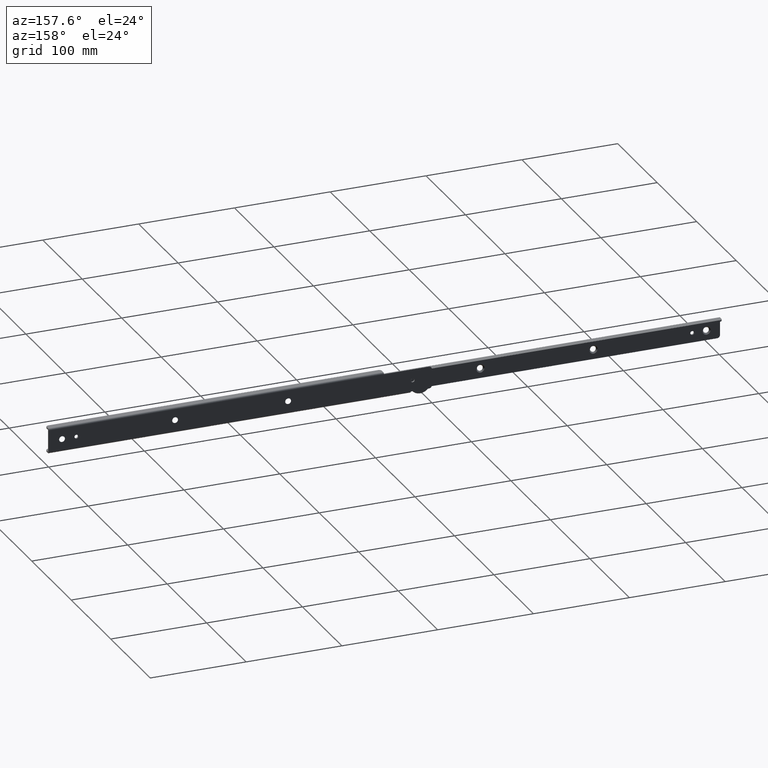
[diagram: clean part render]
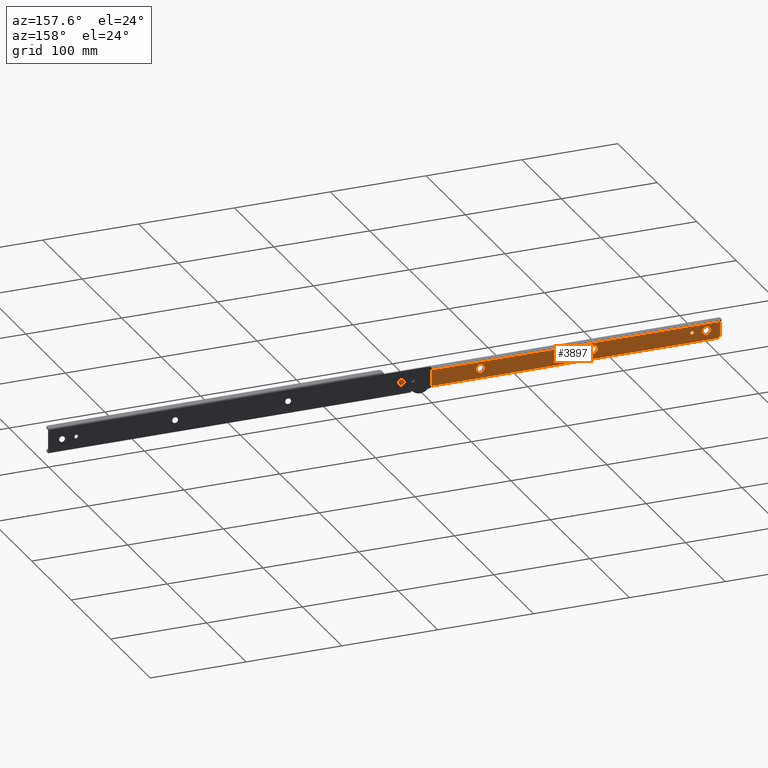
[diagram: same view with one face highlighted and labeled with its STEP entity id]
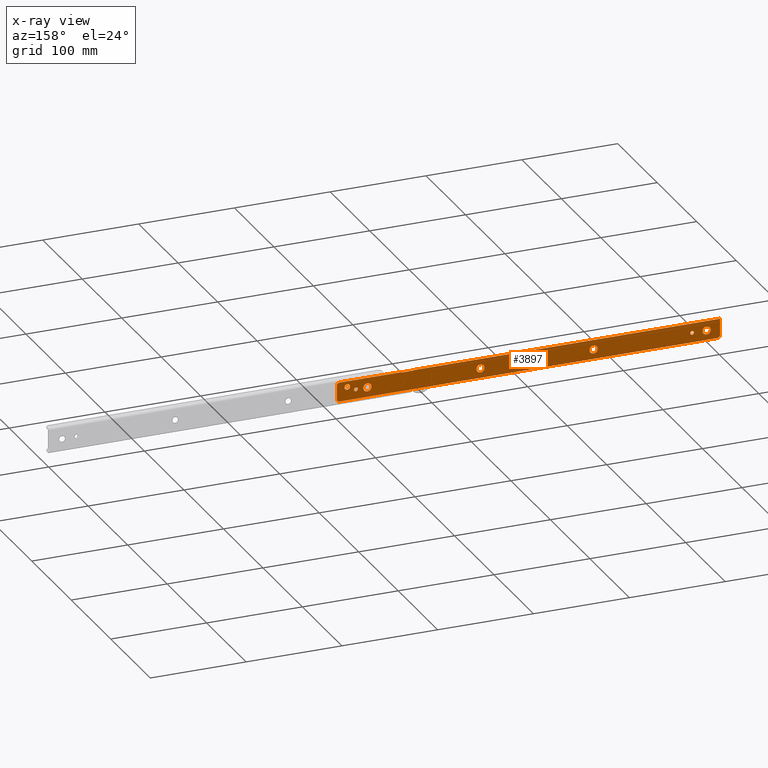
[diagram: x-ray of the same camera — body ghosted, the highlighted face saturated]
A machine part, auxiliary view. The second image highlights one B-rep face of the part: STEP entity #3897.
The next image is the same camera in x-ray: the body ghosted, the highlighted face saturated — about 0% of this face is hidden behind the body in this view.
In plain terms, the highlighted face is a freeform B-spline surface patch.
Its self-contained STEP definition (entity closure, byte-faithful):
#1384=CARTESIAN_POINT('',(86.940906133188662,-10.400000000000000,-7.831454349220865));
#1385=VERTEX_POINT('',#1384);
#1391=CARTESIAN_POINT('',(84.0,-10.400000000000000,-10.549999999999800));
#1392=VERTEX_POINT('',#1391);
#1393=CARTESIAN_POINT('',(84.0,-10.400000000000000,-10.549999999999800));
#1394=CARTESIAN_POINT('',(86.726951919095313,-10.400000000000000,-10.549999999999800));
#1395=CARTESIAN_POINT('',(86.940906133188662,-10.400000000000004,-7.831454349220865));
#1403=(BOUNDED_CURVE()B_SPLINE_CURVE(2,(#1393,#1394,#1395),.UNSPECIFIED.,.F.,.U.)B_SPLINE_CURVE_WITH_KNOTS((3,3),(0.0,0.236331298671445),.UNSPECIFIED.)CURVE()GEOMETRIC_REPRESENTATION_ITEM()RATIONAL_B_SPLINE_CURVE((1.0,0.723120660903028,0.969723352078686))REPRESENTATION_ITEM(''));
#1404=EDGE_CURVE('',#1392,#1385,#1403,.T.);
#1406=CARTESIAN_POINT('',(81.059093866811338,-10.400000000000000,-7.368545650778734));
#1407=VERTEX_POINT('',#1406);
#1408=CARTESIAN_POINT('',(81.059093866811338,-10.399999999999997,-7.368545650778734));
#1409=CARTESIAN_POINT('',(81.050000000000011,-10.400000000000002,-7.484094167425178));
#1410=CARTESIAN_POINT('',(81.050000000000011,-10.400000000000000,-7.599999999999800));
#1411=CARTESIAN_POINT('',(81.050000000000011,-10.400000000000000,-10.549999999999802));
#1412=CARTESIAN_POINT('',(84.0,-10.400000000000000,-10.549999999999800));
#1420=(BOUNDED_CURVE()B_SPLINE_CURVE(2,(#1408,#1409,#1410,#1411,#1412),.UNSPECIFIED.,.F.,.U.)B_SPLINE_CURVE_WITH_KNOTS((3,2,3),(0.736331298671445,0.750000000000000,1.0),.UNSPECIFIED.)CURVE()GEOMETRIC_REPRESENTATION_ITEM()RATIONAL_B_SPLINE_CURVE((0.969723352078686,0.983986120283519,1.0,0.707106781186548,1.0))REPRESENTATION_ITEM(''));
#1421=EDGE_CURVE('',#1407,#1392,#1420,.T.);
#1497=CARTESIAN_POINT('',(84.0,-10.400000000000000,-4.649999999999801));
#1498=VERTEX_POINT('',#1497);
#1499=CARTESIAN_POINT('',(84.0,-10.400000000000000,-4.649999999999801));
#1500=CARTESIAN_POINT('',(81.273048080904715,-10.400000000000000,-4.649999999999800));
#1501=CARTESIAN_POINT('',(81.059093866811338,-10.399999999999995,-7.368545650778734));
#1509=(BOUNDED_CURVE()B_SPLINE_CURVE(2,(#1499,#1500,#1501),.UNSPECIFIED.,.F.,.U.)B_SPLINE_CURVE_WITH_KNOTS((3,3),(0.500000000000000,0.736331298671444),.UNSPECIFIED.)CURVE()GEOMETRIC_REPRESENTATION_ITEM()RATIONAL_B_SPLINE_CURVE((1.0,0.723120660903030,0.969723352078684))REPRESENTATION_ITEM(''));
#1510=EDGE_CURVE('',#1498,#1407,#1509,.T.);
#1512=CARTESIAN_POINT('',(86.940906133188662,-10.399999999999995,-7.831454349220865));
#1513=CARTESIAN_POINT('',(86.950000000000017,-10.400000000000000,-7.715905832574421));
#1514=CARTESIAN_POINT('',(86.950000000000003,-10.400000000000000,-7.599999999999800));
#1515=CARTESIAN_POINT('',(86.950000000000003,-10.400000000000000,-4.649999999999801));
#1516=CARTESIAN_POINT('',(84.0,-10.400000000000000,-4.649999999999801));
#1524=(BOUNDED_CURVE()B_SPLINE_CURVE(2,(#1512,#1513,#1514,#1515,#1516),.UNSPECIFIED.,.F.,.U.)B_SPLINE_CURVE_WITH_KNOTS((3,2,3),(0.236331298671445,0.250000000000000,0.500000000000000),.UNSPECIFIED.)CURVE()GEOMETRIC_REPRESENTATION_ITEM()RATIONAL_B_SPLINE_CURVE((0.969723352078686,0.983986120283519,1.0,0.707106781186548,1.0))REPRESENTATION_ITEM(''));
#1525=EDGE_CURVE('',#1385,#1498,#1524,.T.);
#1566=CARTESIAN_POINT('',(58.713255463621522,-10.399999995444610,-11.262625858044521));
#1567=VERTEX_POINT('',#1566);
#1573=CARTESIAN_POINT('',(63.0,-10.400000000000000,-7.299999999999800));
#1574=VERTEX_POINT('',#1573);
#1575=CARTESIAN_POINT('',(63.0,-10.400000000000000,-7.299999999999800));
#1576=CARTESIAN_POINT('',(59.025120941742067,-10.399999999999999,-7.299999999999800));
#1577=CARTESIAN_POINT('',(58.713255463621529,-10.399999995444606,-11.262625858044515));
#1585=(BOUNDED_CURVE()B_SPLINE_CURVE(2,(#1575,#1576,#1577),.UNSPECIFIED.,.F.,.U.)B_SPLINE_CURVE_WITH_KNOTS((3,3),(0.0,0.236331298230590),.UNSPECIFIED.)CURVE()GEOMETRIC_REPRESENTATION_ITEM()RATIONAL_B_SPLINE_CURVE((1.0,0.723120661419522,0.969723351158655))REPRESENTATION_ITEM(''));
#1586=EDGE_CURVE('',#1574,#1567,#1585,.T.);
#1588=CARTESIAN_POINT('',(67.286744536378478,-10.399999995444601,-11.937374141955081));
#1589=VERTEX_POINT('',#1588);
#1590=CARTESIAN_POINT('',(67.286744536378478,-10.399999995444599,-11.937374141955079));
#1591=CARTESIAN_POINT('',(67.300000000000011,-10.400000000000000,-11.768947490307314));
#1592=CARTESIAN_POINT('',(67.299999999999997,-10.400000000000000,-11.599999999999801));
#1593=CARTESIAN_POINT('',(67.299999999999997,-10.400000000000000,-7.299999999999800));
#1594=CARTESIAN_POINT('',(63.0,-10.400000000000000,-7.299999999999800));
#1602=(BOUNDED_CURVE()B_SPLINE_CURVE(2,(#1590,#1591,#1592,#1593,#1594),.UNSPECIFIED.,.F.,.U.)B_SPLINE_CURVE_WITH_KNOTS((3,2,3),(0.736331298230590,0.750000000000000,1.0),.UNSPECIFIED.)CURVE()GEOMETRIC_REPRESENTATION_ITEM()RATIONAL_B_SPLINE_CURVE((0.969723351158655,0.983986119767025,1.0,0.707106781186547,1.0))REPRESENTATION_ITEM(''));
#1603=EDGE_CURVE('',#1589,#1574,#1602,.T.);
#1679=CARTESIAN_POINT('',(63.0,-10.400000000000000,-15.899999999999800));
#1680=VERTEX_POINT('',#1679);
#1681=CARTESIAN_POINT('',(63.0,-10.400000000000000,-15.899999999999800));
#1682=CARTESIAN_POINT('',(66.974879058257940,-10.400000000000002,-15.899999999999803));
#1683=CARTESIAN_POINT('',(67.286744536378478,-10.399999995444603,-11.937374141955081));
#1691=(BOUNDED_CURVE()B_SPLINE_CURVE(2,(#1681,#1682,#1683),.UNSPECIFIED.,.F.,.U.)B_SPLINE_CURVE_WITH_KNOTS((3,3),(0.500000000000000,0.736331298230590),.UNSPECIFIED.)CURVE()GEOMETRIC_REPRESENTATION_ITEM()RATIONAL_B_SPLINE_CURVE((1.0,0.723120661419522,0.969723351158655))REPRESENTATION_ITEM(''));
#1692=EDGE_CURVE('',#1680,#1589,#1691,.T.);
#1694=CARTESIAN_POINT('',(58.713255463621522,-10.399999995444610,-11.262625858044519));
#1695=CARTESIAN_POINT('',(58.700000000000017,-10.400000000000000,-11.431052509692291));
#1696=CARTESIAN_POINT('',(58.700000000000003,-10.400000000000000,-11.599999999999801));
#1697=CARTESIAN_POINT('',(58.700000000000003,-10.400000000000000,-15.899999999999794));
#1698=CARTESIAN_POINT('',(63.0,-10.400000000000000,-15.899999999999800));
#1706=(BOUNDED_CURVE()B_SPLINE_CURVE(2,(#1694,#1695,#1696,#1697,#1698),.UNSPECIFIED.,.F.,.U.)B_SPLINE_CURVE_WITH_KNOTS((3,2,3),(0.236331298230590,0.250000000000000,0.500000000000000),.UNSPECIFIED.)CURVE()GEOMETRIC_REPRESENTATION_ITEM()RATIONAL_B_SPLINE_CURVE((0.969723351158655,0.983986119767025,1.0,0.707106781186547,1.0))REPRESENTATION_ITEM(''));
#1707=EDGE_CURVE('',#1567,#1680,#1706,.T.);
#1748=CARTESIAN_POINT('',(-59.286744536378478,-10.399999995444610,-11.262625858044521));
#1749=VERTEX_POINT('',#1748);
#1755=CARTESIAN_POINT('',(-55.0,-10.400000000000000,-7.299999999999800));
#1756=VERTEX_POINT('',#1755);
#1757=CARTESIAN_POINT('',(-55.0,-10.400000000000000,-7.299999999999800));
#1758=CARTESIAN_POINT('',(-58.974879058257947,-10.399999999999999,-7.299999999999800));
#1759=CARTESIAN_POINT('',(-59.286744536378478,-10.399999995444606,-11.262625858044515));
#1767=(BOUNDED_CURVE()B_SPLINE_CURVE(2,(#1757,#1758,#1759),.UNSPECIFIED.,.F.,.U.)B_SPLINE_CURVE_WITH_KNOTS((3,3),(0.0,0.236331298230590),.UNSPECIFIED.)CURVE()GEOMETRIC_REPRESENTATION_ITEM()RATIONAL_B_SPLINE_CURVE((1.0,0.723120661419522,0.969723351158655))REPRESENTATION_ITEM(''));
#1768=EDGE_CURVE('',#1756,#1749,#1767,.T.);
#1770=CARTESIAN_POINT('',(-50.713255463621522,-10.399999995444601,-11.937374141955081));
#1771=VERTEX_POINT('',#1770);
#1772=CARTESIAN_POINT('',(-50.713255463621522,-10.399999995444610,-11.937374141955079));
#1773=CARTESIAN_POINT('',(-50.700000000000003,-10.400000000000000,-11.768947490307314));
#1774=CARTESIAN_POINT('',(-50.700000000000003,-10.400000000000000,-11.599999999999801));
#1775=CARTESIAN_POINT('',(-50.700000000000010,-10.400000000000000,-7.299999999999800));
#1776=CARTESIAN_POINT('',(-55.0,-10.400000000000000,-7.299999999999800));
#1784=(BOUNDED_CURVE()B_SPLINE_CURVE(2,(#1772,#1773,#1774,#1775,#1776),.UNSPECIFIED.,.F.,.U.)B_SPLINE_CURVE_WITH_KNOTS((3,2,3),(0.736331298230590,0.750000000000000,1.0),.UNSPECIFIED.)CURVE()GEOMETRIC_REPRESENTATION_ITEM()RATIONAL_B_SPLINE_CURVE((0.969723351158655,0.983986119767025,1.0,0.707106781186547,1.0))REPRESENTATION_ITEM(''));
#1785=EDGE_CURVE('',#1771,#1756,#1784,.T.);
#1861=CARTESIAN_POINT('',(-55.0,-10.400000000000000,-15.899999999999800));
#1862=VERTEX_POINT('',#1861);
#1863=CARTESIAN_POINT('',(-55.0,-10.400000000000000,-15.899999999999800));
#1864=CARTESIAN_POINT('',(-51.025120941742060,-10.400000000000002,-15.899999999999803));
#1865=CARTESIAN_POINT('',(-50.713255463621522,-10.399999995444603,-11.937374141955081));
#1873=(BOUNDED_CURVE()B_SPLINE_CURVE(2,(#1863,#1864,#1865),.UNSPECIFIED.,.F.,.U.)B_SPLINE_CURVE_WITH_KNOTS((3,3),(0.500000000000000,0.736331298230590),.UNSPECIFIED.)CURVE()GEOMETRIC_REPRESENTATION_ITEM()RATIONAL_B_SPLINE_CURVE((1.0,0.723120661419522,0.969723351158655))REPRESENTATION_ITEM(''));
#1874=EDGE_CURVE('',#1862,#1771,#1873,.T.);
#1876=CARTESIAN_POINT('',(-59.286744536378478,-10.399999995444610,-11.262625858044519));
#1877=CARTESIAN_POINT('',(-59.299999999999997,-10.400000000000000,-11.431052509692291));
#1878=CARTESIAN_POINT('',(-59.299999999999997,-10.400000000000000,-11.599999999999801));
#1879=CARTESIAN_POINT('',(-59.299999999999997,-10.400000000000000,-15.899999999999794));
#1880=CARTESIAN_POINT('',(-55.0,-10.400000000000000,-15.899999999999800));
#1888=(BOUNDED_CURVE()B_SPLINE_CURVE(2,(#1876,#1877,#1878,#1879,#1880),.UNSPECIFIED.,.F.,.U.)B_SPLINE_CURVE_WITH_KNOTS((3,2,3),(0.236331298230590,0.250000000000000,0.500000000000000),.UNSPECIFIED.)CURVE()GEOMETRIC_REPRESENTATION_ITEM()RATIONAL_B_SPLINE_CURVE((0.969723351158655,0.983986119767025,1.0,0.707106781186547,1.0))REPRESENTATION_ITEM(''));
#1889=EDGE_CURVE('',#1749,#1862,#1888,.T.);
#1930=CARTESIAN_POINT('',(-177.286744536378510,-10.399999995444610,-11.262625858044521));
#1931=VERTEX_POINT('',#1930);
#1937=CARTESIAN_POINT('',(-173.0,-10.400000000000000,-7.299999999999800));
#1938=VERTEX_POINT('',#1937);
#1939=CARTESIAN_POINT('',(-173.0,-10.400000000000000,-7.299999999999800));
#1940=CARTESIAN_POINT('',(-176.974879058258010,-10.399999999999999,-7.299999999999800));
#1941=CARTESIAN_POINT('',(-177.286744536378480,-10.399999995444606,-11.262625858044515));
#1949=(BOUNDED_CURVE()B_SPLINE_CURVE(2,(#1939,#1940,#1941),.UNSPECIFIED.,.F.,.U.)B_SPLINE_CURVE_WITH_KNOTS((3,3),(0.0,0.236331298230590),.UNSPECIFIED.)CURVE()GEOMETRIC_REPRESENTATION_ITEM()RATIONAL_B_SPLINE_CURVE((1.0,0.723120661419522,0.969723351158655))REPRESENTATION_ITEM(''));
#1950=EDGE_CURVE('',#1938,#1931,#1949,.T.);
#1952=CARTESIAN_POINT('',(-168.713255463621490,-10.399999995444601,-11.937374141955081));
#1953=VERTEX_POINT('',#1952);
#1954=CARTESIAN_POINT('',(-168.713255463621550,-10.399999995444599,-11.937374141955079));
#1955=CARTESIAN_POINT('',(-168.699999999999960,-10.400000000000000,-11.768947490307314));
#1956=CARTESIAN_POINT('',(-168.699999999999990,-10.400000000000000,-11.599999999999801));
#1957=CARTESIAN_POINT('',(-168.699999999999930,-10.400000000000000,-7.299999999999800));
#1958=CARTESIAN_POINT('',(-173.0,-10.400000000000000,-7.299999999999800));
#1966=(BOUNDED_CURVE()B_SPLINE_CURVE(2,(#1954,#1955,#1956,#1957,#1958),.UNSPECIFIED.,.F.,.U.)B_SPLINE_CURVE_WITH_KNOTS((3,2,3),(0.736331298230590,0.750000000000000,1.0),.UNSPECIFIED.)CURVE()GEOMETRIC_REPRESENTATION_ITEM()RATIONAL_B_SPLINE_CURVE((0.969723351158655,0.983986119767025,1.0,0.707106781186547,1.0))REPRESENTATION_ITEM(''));
#1967=EDGE_CURVE('',#1953,#1938,#1966,.T.);
#2043=CARTESIAN_POINT('',(-173.0,-10.400000000000000,-15.899999999999800));
#2044=VERTEX_POINT('',#2043);
#2045=CARTESIAN_POINT('',(-173.0,-10.400000000000000,-15.899999999999800));
#2046=CARTESIAN_POINT('',(-169.025120941742020,-10.400000000000002,-15.899999999999803));
#2047=CARTESIAN_POINT('',(-168.713255463621520,-10.399999995444603,-11.937374141955081));
#2055=(BOUNDED_CURVE()B_SPLINE_CURVE(2,(#2045,#2046,#2047),.UNSPECIFIED.,.F.,.U.)B_SPLINE_CURVE_WITH_KNOTS((3,3),(0.500000000000000,0.736331298230590),.UNSPECIFIED.)CURVE()GEOMETRIC_REPRESENTATION_ITEM()RATIONAL_B_SPLINE_CURVE((1.0,0.723120661419522,0.969723351158655))REPRESENTATION_ITEM(''));
#2056=EDGE_CURVE('',#2044,#1953,#2055,.T.);
#2058=CARTESIAN_POINT('',(-177.286744536378540,-10.399999995444610,-11.262625858044519));
#2059=CARTESIAN_POINT('',(-177.299999999999950,-10.400000000000000,-11.431052509692281));
#2060=CARTESIAN_POINT('',(-177.300000000000010,-10.400000000000000,-11.599999999999801));
#2061=CARTESIAN_POINT('',(-177.300000000000040,-10.400000000000000,-15.899999999999794));
#2062=CARTESIAN_POINT('',(-173.0,-10.400000000000000,-15.899999999999800));
#2070=(BOUNDED_CURVE()B_SPLINE_CURVE(2,(#2058,#2059,#2060,#2061,#2062),.UNSPECIFIED.,.F.,.U.)B_SPLINE_CURVE_WITH_KNOTS((3,2,3),(0.236331298230590,0.250000000000000,0.500000000000000),.UNSPECIFIED.)CURVE()GEOMETRIC_REPRESENTATION_ITEM()RATIONAL_B_SPLINE_CURVE((0.969723351158655,0.983986119767025,1.0,0.707106781186547,1.0))REPRESENTATION_ITEM(''));
#2071=EDGE_CURVE('',#1931,#2044,#2070,.T.);
#2112=CARTESIAN_POINT('',(-295.286744536378480,-10.399999995444590,-11.262625858044521));
#2113=VERTEX_POINT('',#2112);
#2119=CARTESIAN_POINT('',(-291.0,-10.400000000000000,-7.299999999999800));
#2120=VERTEX_POINT('',#2119);
#2121=CARTESIAN_POINT('',(-291.0,-10.400000000000000,-7.299999999999800));
#2122=CARTESIAN_POINT('',(-294.974879058257950,-10.400000000000002,-7.299999999999801));
#2123=CARTESIAN_POINT('',(-295.286744536378540,-10.399999995444594,-11.262625858044514));
#2131=(BOUNDED_CURVE()B_SPLINE_CURVE(2,(#2121,#2122,#2123),.UNSPECIFIED.,.F.,.U.)B_SPLINE_CURVE_WITH_KNOTS((3,3),(0.0,0.236331298230589),.UNSPECIFIED.)CURVE()GEOMETRIC_REPRESENTATION_ITEM()RATIONAL_B_SPLINE_CURVE((1.0,0.723120661419523,0.969723351158654))REPRESENTATION_ITEM(''));
#2132=EDGE_CURVE('',#2120,#2113,#2131,.T.);
#2134=CARTESIAN_POINT('',(-286.713255463621520,-10.399999995444590,-11.937374141955081));
#2135=VERTEX_POINT('',#2134);
#2136=CARTESIAN_POINT('',(-286.713255463621520,-10.399999995444594,-11.937374141955086));
#2137=CARTESIAN_POINT('',(-286.699999999999870,-10.400000000000002,-11.768947490307315));
#2138=CARTESIAN_POINT('',(-286.699999999999870,-10.400000000000000,-11.599999999999801));
#2139=CARTESIAN_POINT('',(-286.699999999999930,-10.400000000000000,-7.299999999999800));
#2140=CARTESIAN_POINT('',(-291.0,-10.400000000000000,-7.299999999999800));
#2148=(BOUNDED_CURVE()B_SPLINE_CURVE(2,(#2136,#2137,#2138,#2139,#2140),.UNSPECIFIED.,.F.,.U.)B_SPLINE_CURVE_WITH_KNOTS((3,2,3),(0.736331298230589,0.750000000000000,1.0),.UNSPECIFIED.)CURVE()GEOMETRIC_REPRESENTATION_ITEM()RATIONAL_B_SPLINE_CURVE((0.969723351158654,0.983986119767025,1.0,0.707106781186547,1.0))REPRESENTATION_ITEM(''));
#2149=EDGE_CURVE('',#2135,#2120,#2148,.T.);
#2225=CARTESIAN_POINT('',(-291.0,-10.400000000000000,-15.899999999999800));
#2226=VERTEX_POINT('',#2225);
#2227=CARTESIAN_POINT('',(-291.0,-10.400000000000000,-15.899999999999800));
#2228=CARTESIAN_POINT('',(-287.025120941741990,-10.400000000000002,-15.899999999999803));
#2229=CARTESIAN_POINT('',(-286.713255463621460,-10.399999995444592,-11.937374141955081));
#2237=(BOUNDED_CURVE()B_SPLINE_CURVE(2,(#2227,#2228,#2229),.UNSPECIFIED.,.F.,.U.)B_SPLINE_CURVE_WITH_KNOTS((3,3),(0.500000000000000,0.736331298230590),.UNSPECIFIED.)CURVE()GEOMETRIC_REPRESENTATION_ITEM()RATIONAL_B_SPLINE_CURVE((1.0,0.723120661419522,0.969723351158655))REPRESENTATION_ITEM(''));
#2238=EDGE_CURVE('',#2226,#2135,#2237,.T.);
#2240=CARTESIAN_POINT('',(-295.286744536378420,-10.399999995444592,-11.262625858044512));
#2241=CARTESIAN_POINT('',(-295.299999999999950,-10.400000000000000,-11.431052509692282));
#2242=CARTESIAN_POINT('',(-295.300000000000010,-10.400000000000000,-11.599999999999801));
#2243=CARTESIAN_POINT('',(-295.300000000000010,-10.400000000000000,-15.899999999999794));
#2244=CARTESIAN_POINT('',(-291.0,-10.400000000000000,-15.899999999999800));
#2252=(BOUNDED_CURVE()B_SPLINE_CURVE(2,(#2240,#2241,#2242,#2243,#2244),.UNSPECIFIED.,.F.,.U.)B_SPLINE_CURVE_WITH_KNOTS((3,2,3),(0.236331298230589,0.250000000000000,0.500000000000000),.UNSPECIFIED.)CURVE()GEOMETRIC_REPRESENTATION_ITEM()RATIONAL_B_SPLINE_CURVE((0.969723351158654,0.983986119767025,1.0,0.707106781186547,1.0))REPRESENTATION_ITEM(''));
#2253=EDGE_CURVE('',#2113,#2226,#2252,.T.);
#2294=CARTESIAN_POINT('',(-277.993834666779210,-10.400000000000000,-11.443081799814300));
#2295=VERTEX_POINT('',#2294);
#2301=CARTESIAN_POINT('',(-276.0,-10.400000000000000,-9.599999999999799));
#2302=VERTEX_POINT('',#2301);
#2303=CARTESIAN_POINT('',(-276.0,-10.400000000000000,-9.599999999999799));
#2304=CARTESIAN_POINT('',(-277.848780967077000,-10.400000000000000,-9.599999999999799));
#2305=CARTESIAN_POINT('',(-277.993834666779210,-10.400000000000000,-11.443081799814300));
#2313=(BOUNDED_CURVE()B_SPLINE_CURVE(2,(#2303,#2304,#2305),.UNSPECIFIED.,.F.,.U.)B_SPLINE_CURVE_WITH_KNOTS((3,3),(0.0,0.236331299131636),.UNSPECIFIED.)CURVE()GEOMETRIC_REPRESENTATION_ITEM()RATIONAL_B_SPLINE_CURVE((1.0,0.723120660363881,0.969723353039070))REPRESENTATION_ITEM(''));
#2314=EDGE_CURVE('',#2302,#2295,#2313,.T.);
#2316=CARTESIAN_POINT('',(-274.006165333220790,-10.400000000000000,-11.756918200185300));
#2317=VERTEX_POINT('',#2316);
#2318=CARTESIAN_POINT('',(-274.006165333220790,-10.400000000000002,-11.756918200185302));
#2319=CARTESIAN_POINT('',(-274.000000000000060,-10.399999999999997,-11.678580222785461));
#2320=CARTESIAN_POINT('',(-274.0,-10.400000000000000,-11.599999999999801));
#2321=CARTESIAN_POINT('',(-273.999999999999940,-10.400000000000000,-9.599999999999799));
#2322=CARTESIAN_POINT('',(-276.0,-10.400000000000000,-9.599999999999799));
#2330=(BOUNDED_CURVE()B_SPLINE_CURVE(2,(#2318,#2319,#2320,#2321,#2322),.UNSPECIFIED.,.F.,.U.)B_SPLINE_CURVE_WITH_KNOTS((3,2,3),(0.736331299131636,0.750000000000000,1.0),.UNSPECIFIED.)CURVE()GEOMETRIC_REPRESENTATION_ITEM()RATIONAL_B_SPLINE_CURVE((0.969723353039070,0.983986120822667,1.0,0.707106781186548,1.0))REPRESENTATION_ITEM(''));
#2331=EDGE_CURVE('',#2317,#2302,#2330,.T.);
#2407=CARTESIAN_POINT('',(-276.0,-10.400000000000000,-13.599999999999801));
#2408=VERTEX_POINT('',#2407);
#2409=CARTESIAN_POINT('',(-276.0,-10.400000000000000,-13.599999999999801));
#2410=CARTESIAN_POINT('',(-274.151219032923110,-10.400000000000000,-13.599999999999799));
#2411=CARTESIAN_POINT('',(-274.006165333220850,-10.399999999999999,-11.756918200185302));
#2419=(BOUNDED_CURVE()B_SPLINE_CURVE(2,(#2409,#2410,#2411),.UNSPECIFIED.,.F.,.U.)B_SPLINE_CURVE_WITH_KNOTS((3,3),(0.500000000000000,0.736331299131636),.UNSPECIFIED.)CURVE()GEOMETRIC_REPRESENTATION_ITEM()RATIONAL_B_SPLINE_CURVE((1.0,0.723120660363881,0.969723353039069))REPRESENTATION_ITEM(''));
#2420=EDGE_CURVE('',#2408,#2317,#2419,.T.);
#2422=CARTESIAN_POINT('',(-277.993834666779260,-10.400000000000004,-11.443081799814303));
#2423=CARTESIAN_POINT('',(-278.0,-10.399999999999997,-11.521419777214136));
#2424=CARTESIAN_POINT('',(-278.0,-10.400000000000000,-11.599999999999801));
#2425=CARTESIAN_POINT('',(-278.0,-10.400000000000000,-13.599999999999799));
#2426=CARTESIAN_POINT('',(-276.0,-10.400000000000000,-13.599999999999801));
#2434=(BOUNDED_CURVE()B_SPLINE_CURVE(2,(#2422,#2423,#2424,#2425,#2426),.UNSPECIFIED.,.F.,.U.)B_SPLINE_CURVE_WITH_KNOTS((3,2,3),(0.236331299131636,0.250000000000000,0.500000000000000),.UNSPECIFIED.)CURVE()GEOMETRIC_REPRESENTATION_ITEM()RATIONAL_B_SPLINE_CURVE((0.969723353039070,0.983986120822667,1.0,0.707106781186548,1.0))REPRESENTATION_ITEM(''));
#2435=EDGE_CURVE('',#2295,#2408,#2434,.T.);
#2476=CARTESIAN_POINT('',(73.006165333220792,-10.400000000000000,-11.443081799814300));
#2477=VERTEX_POINT('',#2476);
#2483=CARTESIAN_POINT('',(75.0,-10.400000000000000,-9.599999999999799));
#2484=VERTEX_POINT('',#2483);
#2485=CARTESIAN_POINT('',(75.0,-10.400000000000000,-9.599999999999799));
#2486=CARTESIAN_POINT('',(73.151219032923038,-10.399999999999999,-9.599999999999799));
#2487=CARTESIAN_POINT('',(73.006165333220792,-10.400000000000004,-11.443081799814303));
#2495=(BOUNDED_CURVE()B_SPLINE_CURVE(2,(#2485,#2486,#2487),.UNSPECIFIED.,.F.,.U.)B_SPLINE_CURVE_WITH_KNOTS((3,3),(0.0,0.236331299131636),.UNSPECIFIED.)CURVE()GEOMETRIC_REPRESENTATION_ITEM()RATIONAL_B_SPLINE_CURVE((1.0,0.723120660363881,0.969723353039071))REPRESENTATION_ITEM(''));
#2496=EDGE_CURVE('',#2484,#2477,#2495,.T.);
#2498=CARTESIAN_POINT('',(76.993834666779208,-10.400000000000000,-11.756918200185300));
#2499=VERTEX_POINT('',#2498);
#2500=CARTESIAN_POINT('',(76.993834666779208,-10.400000000000006,-11.756918200185297));
#2501=CARTESIAN_POINT('',(77.0,-10.400000000000006,-11.678580222785460));
#2502=CARTESIAN_POINT('',(77.0,-10.400000000000000,-11.599999999999801));
#2503=CARTESIAN_POINT('',(77.000000000000014,-10.400000000000000,-9.599999999999799));
#2504=CARTESIAN_POINT('',(75.0,-10.400000000000000,-9.599999999999799));
#2512=(BOUNDED_CURVE()B_SPLINE_CURVE(2,(#2500,#2501,#2502,#2503,#2504),.UNSPECIFIED.,.F.,.U.)B_SPLINE_CURVE_WITH_KNOTS((3,2,3),(0.736331299131636,0.750000000000000,1.0),.UNSPECIFIED.)CURVE()GEOMETRIC_REPRESENTATION_ITEM()RATIONAL_B_SPLINE_CURVE((0.969723353039071,0.983986120822667,1.0,0.707106781186548,1.0))REPRESENTATION_ITEM(''));
#2513=EDGE_CURVE('',#2499,#2484,#2512,.T.);
#2589=CARTESIAN_POINT('',(75.0,-10.400000000000000,-13.599999999999801));
#2590=VERTEX_POINT('',#2589);
#2591=CARTESIAN_POINT('',(75.0,-10.400000000000000,-13.599999999999801));
#2592=CARTESIAN_POINT('',(76.848780967076934,-10.400000000000000,-13.599999999999799));
#2593=CARTESIAN_POINT('',(76.993834666779208,-10.399999999999999,-11.756918200185302));
#2601=(BOUNDED_CURVE()B_SPLINE_CURVE(2,(#2591,#2592,#2593),.UNSPECIFIED.,.F.,.U.)B_SPLINE_CURVE_WITH_KNOTS((3,3),(0.500000000000000,0.736331299131636),.UNSPECIFIED.)CURVE()GEOMETRIC_REPRESENTATION_ITEM()RATIONAL_B_SPLINE_CURVE((1.0,0.723120660363881,0.969723353039069))REPRESENTATION_ITEM(''));
#2602=EDGE_CURVE('',#2590,#2499,#2601,.T.);
#2604=CARTESIAN_POINT('',(73.006165333220792,-10.400000000000002,-11.443081799814301));
#2605=CARTESIAN_POINT('',(73.0,-10.400000000000002,-11.521419777214140));
#2606=CARTESIAN_POINT('',(73.0,-10.400000000000000,-11.599999999999801));
#2607=CARTESIAN_POINT('',(72.999999999999986,-10.400000000000000,-13.599999999999799));
#2608=CARTESIAN_POINT('',(75.0,-10.400000000000000,-13.599999999999801));
#2616=(BOUNDED_CURVE()B_SPLINE_CURVE(2,(#2604,#2605,#2606,#2607,#2608),.UNSPECIFIED.,.F.,.U.)B_SPLINE_CURVE_WITH_KNOTS((3,2,3),(0.236331299131637,0.250000000000000,0.500000000000000),.UNSPECIFIED.)CURVE()GEOMETRIC_REPRESENTATION_ITEM()RATIONAL_B_SPLINE_CURVE((0.969723353039071,0.983986120822667,1.0,0.707106781186548,1.0))REPRESENTATION_ITEM(''));
#2617=EDGE_CURVE('',#2477,#2590,#2616,.T.);
#3171=CARTESIAN_POINT('',(-302.0,-10.400000000000000,-21.600000000000001));
#3172=VERTEX_POINT('',#3171);
#3173=CARTESIAN_POINT('',(-305.0,-10.400000000000000,-18.600000000000001));
#3174=VERTEX_POINT('',#3173);
#3175=CARTESIAN_POINT('',(-302.0,-10.400000000000000,-21.600000000000001));
#3176=CARTESIAN_POINT('',(-305.0,-10.400000000000000,-21.600000000000005));
#3177=CARTESIAN_POINT('',(-305.0,-10.400000000000000,-18.600000000000001));
#3185=(BOUNDED_CURVE()B_SPLINE_CURVE(2,(#3175,#3176,#3177),.UNSPECIFIED.,.F.,.U.)CURVE()GEOMETRIC_REPRESENTATION_ITEM()QUASI_UNIFORM_CURVE()RATIONAL_B_SPLINE_CURVE((1.0,0.707106781186548,1.0))REPRESENTATION_ITEM(''));
#3186=EDGE_CURVE('',#3172,#3174,#3185,.T.);
#3232=CARTESIAN_POINT('',(92.0,-10.400000000000000,-1.599999999999795));
#3233=VERTEX_POINT('',#3232);
#3234=CARTESIAN_POINT('',(95.0,-10.400000000000000,-4.599999999999800));
#3235=VERTEX_POINT('',#3234);
#3236=CARTESIAN_POINT('',(92.0,-10.400000000000000,-1.599999999999800));
#3237=CARTESIAN_POINT('',(95.000000000000014,-10.400000000000000,-1.599999999999799));
#3238=CARTESIAN_POINT('',(95.0,-10.400000000000000,-4.599999999999800));
#3246=(BOUNDED_CURVE()B_SPLINE_CURVE(2,(#3236,#3237,#3238),.UNSPECIFIED.,.F.,.U.)CURVE()GEOMETRIC_REPRESENTATION_ITEM()QUASI_UNIFORM_CURVE()RATIONAL_B_SPLINE_CURVE((1.0,0.707106781186548,1.0))REPRESENTATION_ITEM(''));
#3247=EDGE_CURVE('',#3233,#3235,#3246,.T.);
#3293=CARTESIAN_POINT('',(95.0,-10.400000000000000,-18.600000000000001));
#3294=VERTEX_POINT('',#3293);
#3295=CARTESIAN_POINT('',(92.0,-10.400000000000000,-21.600000000000001));
#3296=VERTEX_POINT('',#3295);
#3297=CARTESIAN_POINT('',(95.0,-10.400000000000000,-18.600000000000001));
#3298=CARTESIAN_POINT('',(95.000000000000014,-10.400000000000000,-21.600000000000005));
#3299=CARTESIAN_POINT('',(92.0,-10.400000000000000,-21.600000000000001));
#3307=(BOUNDED_CURVE()B_SPLINE_CURVE(2,(#3297,#3298,#3299),.UNSPECIFIED.,.F.,.U.)CURVE()GEOMETRIC_REPRESENTATION_ITEM()QUASI_UNIFORM_CURVE()RATIONAL_B_SPLINE_CURVE((1.0,0.707106781186548,1.0))REPRESENTATION_ITEM(''));
#3308=EDGE_CURVE('',#3294,#3296,#3307,.T.);
#3353=CARTESIAN_POINT('',(73.0,-10.400000000000000,-1.599999999999795));
#3354=VERTEX_POINT('',#3353);
#3355=CARTESIAN_POINT('',(92.0,-10.400000000000000,-1.599999999999795));
#3356=CARTESIAN_POINT('',(73.0,-10.400000000000000,-1.599999999999795));
#3357=QUASI_UNIFORM_CURVE('',1,(#3355,#3356),.UNSPECIFIED.,.F.,.U.);
#3358=EDGE_CURVE('',#3233,#3354,#3357,.T.);
#3408=CARTESIAN_POINT('',(28.0,-10.400000000000000,-1.999999999999800));
#3409=VERTEX_POINT('',#3408);
#3410=CARTESIAN_POINT('',(14.0,-10.400000000000000,-1.999999999999800));
#3411=VERTEX_POINT('',#3410);
#3412=CARTESIAN_POINT('',(28.0,-10.400000000000000,-1.999999999999800));
#3413=CARTESIAN_POINT('',(14.0,-10.400000000000000,-1.999999999999800));
#3414=QUASI_UNIFORM_CURVE('',1,(#3412,#3413),.UNSPECIFIED.,.F.,.U.);
#3415=EDGE_CURVE('',#3409,#3411,#3414,.T.);
#3467=CARTESIAN_POINT('',(14.0,-10.400000000000000,-1.599999999999795));
#3468=VERTEX_POINT('',#3467);
#3469=CARTESIAN_POINT('',(14.0,-10.400000000000000,-1.999999999999800));
#3470=CARTESIAN_POINT('',(14.0,-10.400000000000000,-1.599999999999795));
#3471=QUASI_UNIFORM_CURVE('',1,(#3469,#3470),.UNSPECIFIED.,.F.,.U.);
#3472=EDGE_CURVE('',#3411,#3468,#3471,.T.);
#3504=CARTESIAN_POINT('',(28.0,-10.400000000000000,-1.599999999999795));
#3505=VERTEX_POINT('',#3504);
#3511=CARTESIAN_POINT('',(28.0,-10.400000000000000,-1.599999999999795));
#3512=CARTESIAN_POINT('',(28.0,-10.400000000000000,-1.999999999999800));
#3513=QUASI_UNIFORM_CURVE('',1,(#3511,#3512),.UNSPECIFIED.,.F.,.U.);
#3514=EDGE_CURVE('',#3505,#3409,#3513,.T.);
#3530=CARTESIAN_POINT('',(-305.0,-10.400000000000000,-1.599999999999795));
#3531=VERTEX_POINT('',#3530);
#3532=CARTESIAN_POINT('',(-305.0,-10.400000000000000,-1.599999999999795));
#3533=CARTESIAN_POINT('',(-305.0,-10.400000000000000,-18.600000000000001));
#3534=QUASI_UNIFORM_CURVE('',1,(#3532,#3533),.UNSPECIFIED.,.F.,.U.);
#3535=EDGE_CURVE('',#3531,#3174,#3534,.T.);
#3585=CARTESIAN_POINT('',(95.0,-10.400000000000000,-4.599999999999800));
#3586=CARTESIAN_POINT('',(95.0,-10.400000000000000,-18.600000000000001));
#3587=QUASI_UNIFORM_CURVE('',1,(#3585,#3586),.UNSPECIFIED.,.F.,.U.);
#3588=EDGE_CURVE('',#3235,#3294,#3587,.T.);
#3608=CARTESIAN_POINT('',(14.0,-10.400000000000000,-1.599999999999795));
#3609=CARTESIAN_POINT('',(-305.0,-10.400000000000000,-1.599999999999795));
#3610=QUASI_UNIFORM_CURVE('',1,(#3608,#3609),.UNSPECIFIED.,.F.,.U.);
#3611=EDGE_CURVE('',#3468,#3531,#3610,.T.);
#3704=CARTESIAN_POINT('',(92.0,-10.400000000000000,-21.600000000000001));
#3705=CARTESIAN_POINT('',(-302.0,-10.400000000000000,-21.600000000000001));
#3706=QUASI_UNIFORM_CURVE('',1,(#3704,#3705),.UNSPECIFIED.,.F.,.U.);
#3707=EDGE_CURVE('',#3296,#3172,#3706,.T.);
#3721=CARTESIAN_POINT('',(73.0,-10.400000000000000,-1.599999999999795));
#3722=CARTESIAN_POINT('',(28.0,-10.400000000000000,-1.599999999999795));
#3723=QUASI_UNIFORM_CURVE('',1,(#3721,#3722),.UNSPECIFIED.,.F.,.U.);
#3724=EDGE_CURVE('',#3354,#3505,#3723,.T.);
#3836=CARTESIAN_POINT('',(-324.979999224722410,-10.400000000000000,-22.599000336727510));
#3837=CARTESIAN_POINT('',(-324.979999224722290,-10.400000000000000,-0.600999484458353));
#3838=CARTESIAN_POINT('',(114.980009953558390,-10.400000000000000,-22.599000336727510));
#3839=CARTESIAN_POINT('',(114.980009953558390,-10.400000000000000,-0.600999484458353));
#3840=B_SPLINE_SURFACE_WITH_KNOTS('',1,1,((#3836,#3838),(#3837,#3839)),.UNSPECIFIED.,.F.,.F.,.U.,(2,2),(2,2),(0.0,21.998000852269161),(0.0,439.960009178280810),.UNSPECIFIED.);
#3841=ORIENTED_EDGE('',*,*,#3707,.T.);
#3842=ORIENTED_EDGE('',*,*,#3186,.T.);
#3843=ORIENTED_EDGE('',*,*,#3535,.F.);
#3844=ORIENTED_EDGE('',*,*,#3611,.F.);
#3845=ORIENTED_EDGE('',*,*,#3472,.F.);
#3846=ORIENTED_EDGE('',*,*,#3415,.F.);
#3847=ORIENTED_EDGE('',*,*,#3514,.F.);
#3848=ORIENTED_EDGE('',*,*,#3724,.F.);
#3849=ORIENTED_EDGE('',*,*,#3358,.F.);
#3850=ORIENTED_EDGE('',*,*,#3247,.T.);
#3851=ORIENTED_EDGE('',*,*,#3588,.T.);
#3852=ORIENTED_EDGE('',*,*,#3308,.T.);
#3853=EDGE_LOOP('',(#3841,#3842,#3843,#3844,#3845,#3846,#3847,#3848,#3849,#3850,#3851,#3852));
#3854=FACE_OUTER_BOUND('',#3853,.T.);
#3855=ORIENTED_EDGE('',*,*,#2602,.T.);
#3856=ORIENTED_EDGE('',*,*,#2513,.T.);
#3857=ORIENTED_EDGE('',*,*,#2496,.T.);
#3858=ORIENTED_EDGE('',*,*,#2617,.T.);
#3859=EDGE_LOOP('',(#3855,#3856,#3857,#3858));
#3860=FACE_BOUND('',#3859,.T.);
#3861=ORIENTED_EDGE('',*,*,#2420,.T.);
#3862=ORIENTED_EDGE('',*,*,#2331,.T.);
#3863=ORIENTED_EDGE('',*,*,#2314,.T.);
#3864=ORIENTED_EDGE('',*,*,#2435,.T.);
#3865=EDGE_LOOP('',(#3861,#3862,#3863,#3864));
#3866=FACE_BOUND('',#3865,.T.);
#3867=ORIENTED_EDGE('',*,*,#2238,.T.);
#3868=ORIENTED_EDGE('',*,*,#2149,.T.);
#3869=ORIENTED_EDGE('',*,*,#2132,.T.);
#3870=ORIENTED_EDGE('',*,*,#2253,.T.);
#3871=EDGE_LOOP('',(#3867,#3868,#3869,#3870));
#3872=FACE_BOUND('',#3871,.T.);
#3873=ORIENTED_EDGE('',*,*,#2056,.T.);
#3874=ORIENTED_EDGE('',*,*,#1967,.T.);
#3875=ORIENTED_EDGE('',*,*,#1950,.T.);
#3876=ORIENTED_EDGE('',*,*,#2071,.T.);
#3877=EDGE_LOOP('',(#3873,#3874,#3875,#3876));
#3878=FACE_BOUND('',#3877,.T.);
#3879=ORIENTED_EDGE('',*,*,#1874,.T.);
#3880=ORIENTED_EDGE('',*,*,#1785,.T.);
#3881=ORIENTED_EDGE('',*,*,#1768,.T.);
#3882=ORIENTED_EDGE('',*,*,#1889,.T.);
#3883=EDGE_LOOP('',(#3879,#3880,#3881,#3882));
#3884=FACE_BOUND('',#3883,.T.);
#3885=ORIENTED_EDGE('',*,*,#1692,.T.);
#3886=ORIENTED_EDGE('',*,*,#1603,.T.);
#3887=ORIENTED_EDGE('',*,*,#1586,.T.);
#3888=ORIENTED_EDGE('',*,*,#1707,.T.);
#3889=EDGE_LOOP('',(#3885,#3886,#3887,#3888));
#3890=FACE_BOUND('',#3889,.T.);
#3891=ORIENTED_EDGE('',*,*,#1510,.T.);
#3892=ORIENTED_EDGE('',*,*,#1421,.T.);
#3893=ORIENTED_EDGE('',*,*,#1404,.T.);
#3894=ORIENTED_EDGE('',*,*,#1525,.T.);
#3895=EDGE_LOOP('',(#3891,#3892,#3893,#3894));
#3896=FACE_BOUND('',#3895,.T.);
#3897=ADVANCED_FACE('',(#3854,#3860,#3866,#3872,#3878,#3884,#3890,#3896),#3840,.T.);